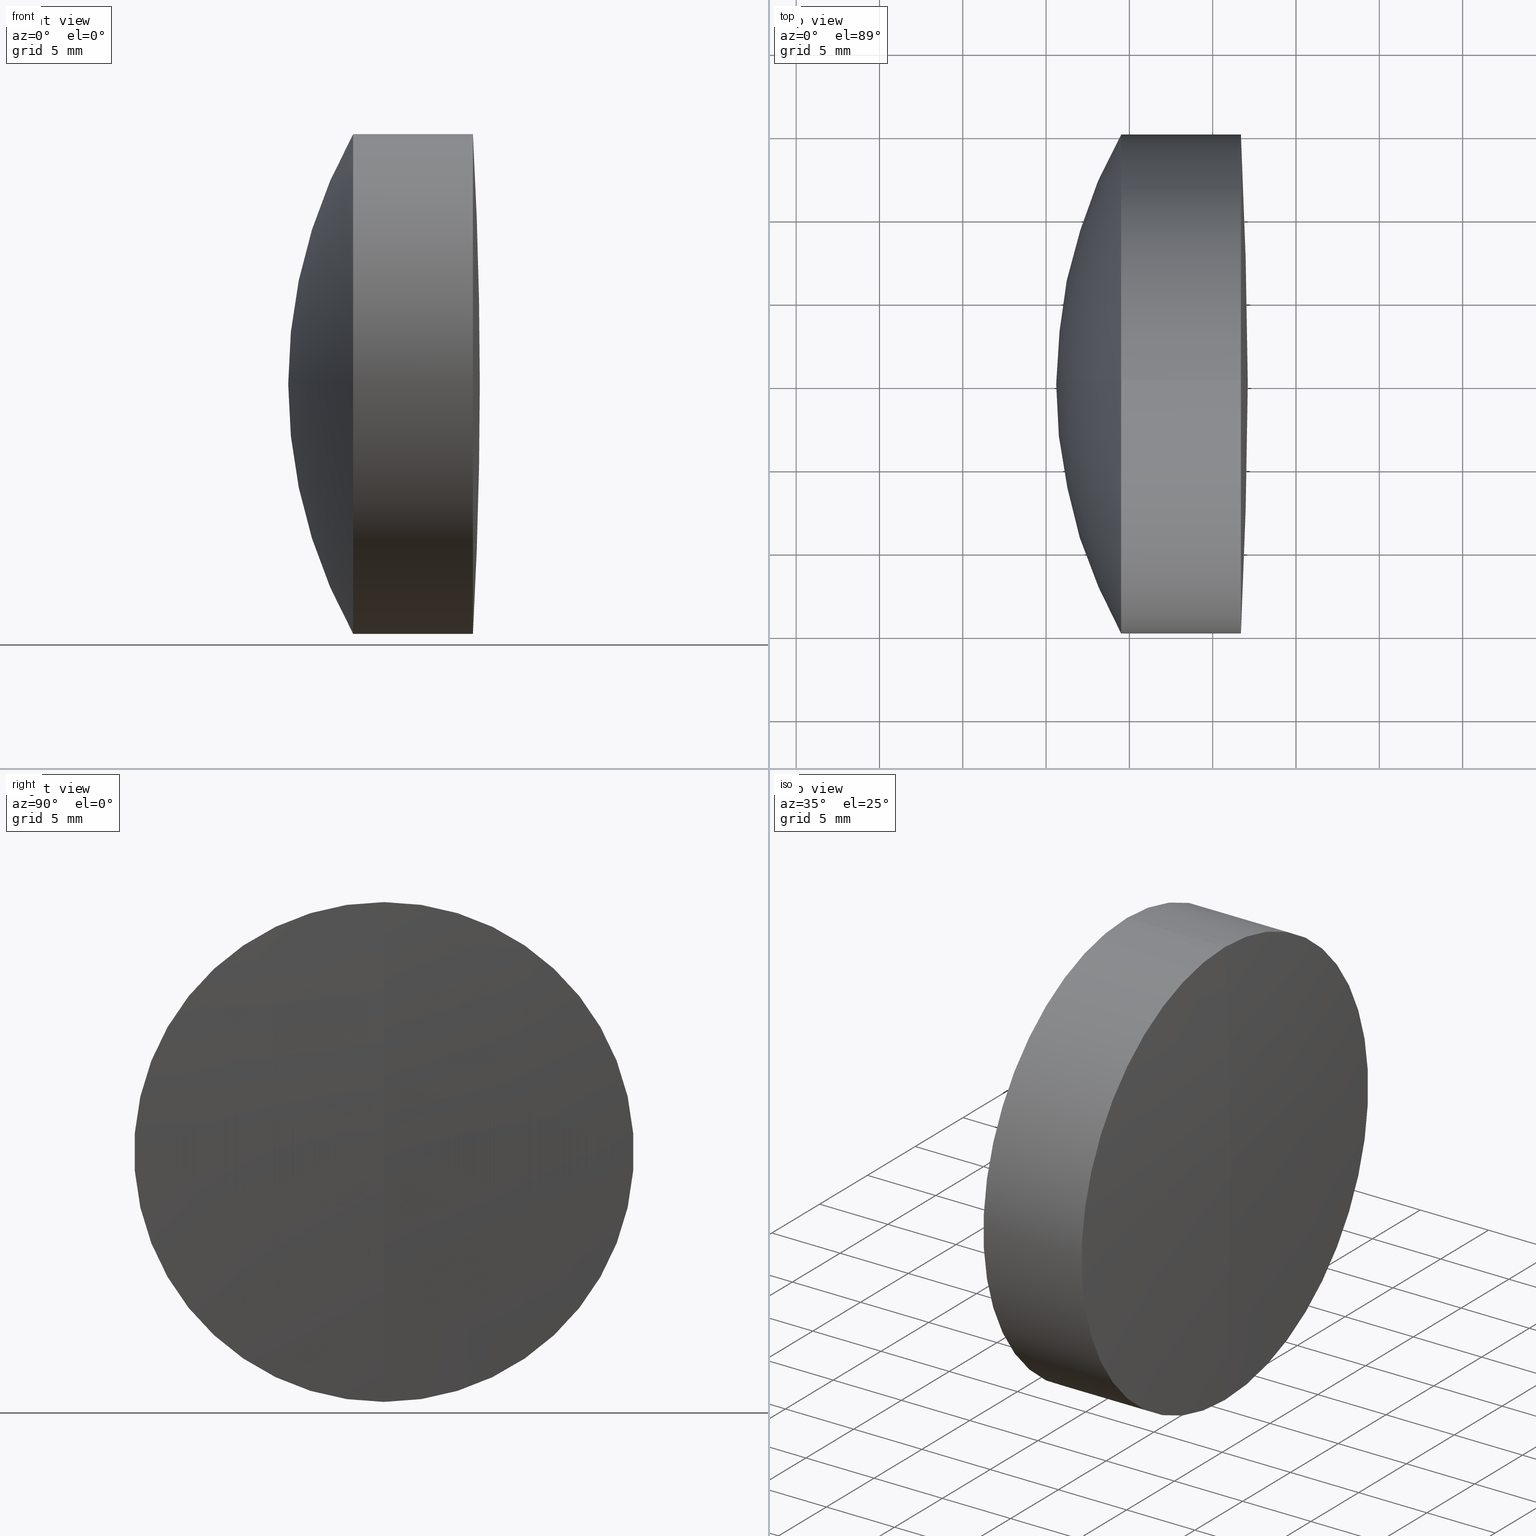
[diagram: canonical four-view strip — front | top / right | iso, engineering-drawing reading convention]
A machine part, canonical four-view strip (front | top / right | iso — engineering-drawing reading convention). The complete STEP part file that produces these views, byte-faithful:
ISO-10303-21;
HEADER;
FILE_DESCRIPTION (( 'STEP AP214' ),
    '1' );
FILE_NAME ('145130.STEP',
    '2019-06-04T02:02:45',
    ( 'user' ),
    ( '΢���й�' ),
    'SwSTEP 2.0',
    'SolidWorks 2016',
    '' );
FILE_SCHEMA (( 'AUTOMOTIVE_DESIGN' ));
ENDSEC;

DATA;
#1 = CARTESIAN_POINT ( 'NONE',  ( 74.20696522508252700, 0.0000000000000000000, 0.0000000000000000000 ) ) ;
#2 = PRODUCT_CONTEXT ( 'NONE', #32, 'mechanical' ) ;
#3 = EDGE_LOOP ( 'NONE', ( #291, #43, #317, #302 ) ) ;
#4 = CIRCLE ( 'NONE', #156, 27.90000000000008400 ) ;
#5 = CARTESIAN_POINT ( 'NONE',  ( 124.5233095260452400, 0.0000000000000000000, 0.0000000000000000000 ) ) ;
#6 = AXIS2_PLACEMENT_3D ( 'NONE', #292, #183, #340 ) ;
#7 = SURFACE_STYLE_USAGE ( .BOTH. , #173 ) ;
#8 = FILL_AREA_STYLE_COLOUR ( '', #190 ) ;
#9 = EDGE_CURVE ( 'NONE', #20, #148, #58, .T. ) ;
#10 = ADVANCED_FACE ( 'NONE', ( #21 ), #127, .T. ) ;
#11 = VERTEX_POINT ( 'NONE', #252 ) ;
#12 = ORIENTED_EDGE ( 'NONE', *, *, #108, .T. ) ;
#13 = PRESENTATION_LAYER_ASSIGNMENT (  '', '', ( #251 ) ) ;
#14 = CARTESIAN_POINT ( 'NONE',  ( 317.2069652250824000, 0.0000000000000000000, 9.183549615799121200E-038 ) ) ;
#15 = DIRECTION ( 'NONE',  ( 0.0000000000000000000, -1.000000000000000000, 0.0000000000000000000 ) ) ;
#16 = CARTESIAN_POINT ( 'NONE',  ( 366.4069652250823900, 0.0000000000000000000, -1.604193031049230700E-015 ) ) ;
#17 = DIRECTION ( 'NONE',  ( -1.000000000000000000, -0.0000000000000000000, -0.0000000000000000000 ) ) ;
#18 = DIRECTION ( 'NONE',  ( 0.0000000000000000000, 0.0000000000000000000, 1.000000000000000000 ) ) ;
#19 = ORIENTED_EDGE ( 'NONE', *, *, #30, .T. ) ;
#20 = VERTEX_POINT ( 'NONE', #268 ) ;
#21 = FACE_OUTER_BOUND ( 'NONE', #3, .T. ) ;
#22 =( NAMED_UNIT ( * ) PLANE_ANGLE_UNIT ( ) SI_UNIT ( $, .RADIAN. ) );
#23 = AXIS2_PLACEMENT_3D ( 'NONE', #56, #26, #146 ) ;
#24 = FILL_AREA_STYLE_COLOUR ( '', #341 ) ;
#25 = DIRECTION ( 'NONE',  ( 0.0000000000000000000, 0.0000000000000000000, 1.000000000000000000 ) ) ;
#26 = DIRECTION ( 'NONE',  ( 0.0000000000000000000, 0.0000000000000000000, 1.000000000000000000 ) ) ;
#27 = VECTOR ( 'NONE', #139, 1000.000000000000000 ) ;
#28 = CIRCLE ( 'NONE', #95, 15.00000000000000000 ) ;
#29 = CARTESIAN_POINT ( 'NONE',  ( -0.5519199926577972300, 0.0000000000000000000, 0.0000000000000000000 ) ) ;
#30 = EDGE_CURVE ( 'NONE', #123, #102, #193, .T. ) ;
#31 = SURFACE_STYLE_USAGE ( .BOTH. , #91 ) ;
#32 = APPLICATION_CONTEXT ( 'automotive_design' ) ;
#33 = EDGE_CURVE ( 'NONE', #59, #333, #89, .T. ) ;
#34 = EDGE_CURVE ( 'NONE', #231, #102, #80, .T. ) ;
#35 = PRODUCT_DEFINITION_CONTEXT ( 'detailed design', #304, 'design' ) ;
#36 = FACE_OUTER_BOUND ( 'NONE', #184, .T. ) ;
#37 = SURFACE_STYLE_FILL_AREA ( #334 ) ;
#38 = CARTESIAN_POINT ( 'NONE',  ( 340.7316331292209400, 1.836970198721026000E-015, -14.99999999999997200 ) ) ;
#39 = ADVANCED_FACE ( 'NONE', ( #332 ), #110, .T. ) ;
#40 = FACE_OUTER_BOUND ( 'NONE', #272, .T. ) ;
#41 = DIRECTION ( 'NONE',  ( -1.000000000000000000, -0.0000000000000000000, -0.0000000000000000000 ) ) ;
#42 = DIRECTION ( 'NONE',  ( 0.0000000000000000000, 0.0000000000000000000, -1.000000000000000000 ) ) ;
#43 = ORIENTED_EDGE ( 'NONE', *, *, #9, .T. ) ;
#44 = PRODUCT_DEFINITION ( 'δ֪', '', #60, #35 ) ;
#45 = DIRECTION ( 'NONE',  ( 0.0000000000000000000, 0.0000000000000000000, 1.000000000000000000 ) ) ;
#46 = UNCERTAINTY_MEASURE_WITH_UNIT (LENGTH_MEASURE( 1.000000000000000100E-005 ), #288, 'distance_accuracy_value', 'NONE');
#47 = CARTESIAN_POINT ( 'NONE',  ( 346.6944144773369800, 0.0000000000000000000, 0.0000000000000000000 ) ) ;
#48 = FILL_AREA_STYLE ('',( #24 ) ) ;
#49 = ORIENTED_EDGE ( 'NONE', *, *, #214, .T. ) ;
#50 = DIRECTION ( 'NONE',  ( 0.0000000000000000000, 0.0000000000000000000, -1.000000000000000000 ) ) ;
#51 = SURFACE_STYLE_FILL_AREA ( #337 ) ;
#52 = DIRECTION ( 'NONE',  ( -0.0000000000000000000, 1.000000000000000000, 1.224646799147353200E-016 ) ) ;
#53 = VERTEX_POINT ( 'NONE', #66 ) ;
#54 = DIRECTION ( 'NONE',  ( 0.0000000000000000000, 0.0000000000000000000, 1.000000000000000000 ) ) ;
#55 = AXIS2_PLACEMENT_3D ( 'NONE', #229, #154, #256 ) ;
#56 = CARTESIAN_POINT ( 'NONE',  ( 0.0000000000000000000, 0.0000000000000000000, 0.0000000000000000000 ) ) ;
#57 = UNCERTAINTY_MEASURE_WITH_UNIT (LENGTH_MEASURE( 1.000000000000000100E-005 ), #262, 'distance_accuracy_value', 'NONE');
#58 = CIRCLE ( 'NONE', #301, 14.99999999999997200 ) ;
#59 = VERTEX_POINT ( 'NONE', #201 ) ;
#60 = PRODUCT_DEFINITION_FORMATION_WITH_SPECIFIED_SOURCE ( '�κ�', '', #198, .NOT_KNOWN. ) ;
#61 = DIRECTION ( 'NONE',  ( 0.0000000000000000000, 0.0000000000000000000, 1.000000000000000000 ) ) ;
#62 = SPHERICAL_SURFACE ( 'NONE', #212, 27.90000000000008400 ) ;
#63 = DIRECTION ( 'NONE',  ( 0.0000000000000000000, 0.0000000000000000000, 1.000000000000000000 ) ) ;
#64 = ADVANCED_FACE ( 'NONE', ( #295 ), #247, .T. ) ;
#65 = SURFACE_SIDE_STYLE ('',( #51 ) ) ;
#66 = CARTESIAN_POINT ( 'NONE',  ( 347.1069652250823800, 0.0000000000000000000, 1.671030557436562800E-014 ) ) ;
#67 = AXIS2_PLACEMENT_3D ( 'NONE', #5, #315, #283 ) ;
#68 = ORIENTED_EDGE ( 'NONE', *, *, #34, .F. ) ;
#69 = MANIFOLD_SOLID_BREP ( '��ת3', #197 ) ;
#70 = DIRECTION ( 'NONE',  ( -1.000000000000000000, -0.0000000000000000000, -0.0000000000000000000 ) ) ;
#71 = DIRECTION ( 'NONE',  ( 0.0000000000000000000, 0.0000000000000000000, 1.000000000000000000 ) ) ;
#72 = EDGE_CURVE ( 'NONE', #11, #279, #115, .T. ) ;
#73 = DIRECTION ( 'NONE',  ( -0.0000000000000000000, 1.000000000000000000, 1.224646799147353200E-016 ) ) ;
#74 = ORIENTED_EDGE ( 'NONE', *, *, #107, .F. ) ;
#75 = DIRECTION ( 'NONE',  ( 0.0000000000000000000, 0.0000000000000000000, 1.000000000000000000 ) ) ;
#76 = AXIS2_PLACEMENT_3D ( 'NONE', #177, #128, #153 ) ;
#77 = VECTOR ( 'NONE', #151, 1000.000000000000000 ) ;
#78 = DIRECTION ( 'NONE',  ( -1.000000000000000000, -0.0000000000000000000, -0.0000000000000000000 ) ) ;
#79 = EDGE_LOOP ( 'NONE', ( #117, #249, #281, #129 ) ) ;
#80 = CIRCLE ( 'NONE', #307, 27.90000000000009100 ) ;
#81 = CIRCLE ( 'NONE', #182, 30.79999999999997900 ) ;
#82 = CARTESIAN_POINT ( 'NONE',  ( 366.4069652250823900, 0.0000000000000000000, -1.604193031049230700E-015 ) ) ;
#83 = PRODUCT_RELATED_PRODUCT_CATEGORY ( 'part', '', ( #198 ) ) ;
#84 = DIRECTION ( 'NONE',  ( 0.0000000000000000000, 0.0000000000000000000, 1.000000000000000000 ) ) ;
#85 = EDGE_LOOP ( 'NONE', ( #255, #12, #118 ) ) ;
#86 = APPLICATION_PROTOCOL_DEFINITION ( 'draft international standard', 'automotive_design', 1998, #304 ) ;
#87 =( GEOMETRIC_REPRESENTATION_CONTEXT ( 3 ) GLOBAL_UNCERTAINTY_ASSIGNED_CONTEXT ( ( #46 ) ) GLOBAL_UNIT_ASSIGNED_CONTEXT ( ( #288, #131, #257 ) ) REPRESENTATION_CONTEXT ( 'NONE', 'WORKASPACE' ) );
#88 = CARTESIAN_POINT ( 'NONE',  ( 74.20696522508252700, 0.0000000000000000000, 0.0000000000000000000 ) ) ;
#89 = CIRCLE ( 'NONE', #314, 27.90000000000008400 ) ;
#90 = ORIENTED_EDGE ( 'NONE', *, *, #188, .F. ) ;
#91 = SURFACE_SIDE_STYLE ('',( #174 ) ) ;
#92 = EDGE_CURVE ( 'NONE', #122, #333, #28, .T. ) ;
#93 = AXIS2_PLACEMENT_3D ( 'NONE', #119, #277, #84 ) ;
#94 = SPHERICAL_SURFACE ( 'NONE', #189, 30.79999999999997900 ) ;
#95 = AXIS2_PLACEMENT_3D ( 'NONE', #99, #285, #63 ) ;
#96 = ORIENTED_EDGE ( 'NONE', *, *, #152, .T. ) ;
#97 = CARTESIAN_POINT ( 'NONE',  ( 74.20696522508252700, 0.0000000000000000000, 0.0000000000000000000 ) ) ;
#98 = CIRCLE ( 'NONE', #269, 14.99999999999997200 ) ;
#99 = CARTESIAN_POINT ( 'NONE',  ( 340.7316331292209400, 0.0000000000000000000, 0.0000000000000000000 ) ) ;
#100 = ADVANCED_FACE ( 'NONE', ( #105 ), #161, .F. ) ;
#101 = EDGE_CURVE ( 'NONE', #231, #123, #241, .T. ) ;
#102 = VERTEX_POINT ( 'NONE', #38 ) ;
#103 = DIRECTION ( 'NONE',  ( -1.000000000000000000, -0.0000000000000000000, -0.0000000000000000000 ) ) ;
#104 =( NAMED_UNIT ( * ) SI_UNIT ( $, .STERADIAN. ) SOLID_ANGLE_UNIT ( ) );
#105 = FACE_OUTER_BOUND ( 'NONE', #312, .T. ) ;
#106 = MANIFOLD_SOLID_BREP ( '��ת1', #344 ) ;
#107 = EDGE_CURVE ( 'NONE', #333, #122, #213, .T. ) ;
#108 = EDGE_CURVE ( 'NONE', #11, #331, #261, .T. ) ;
#109 = SPHERICAL_SURFACE ( 'NONE', #114, 272.8999999999998600 ) ;
#110 = SPHERICAL_SURFACE ( 'NONE', #259, 30.79999999999997900 ) ;
#111 = DIRECTION ( 'NONE',  ( -1.000000000000000000, -0.0000000000000000000, -0.0000000000000000000 ) ) ;
#112 = ORIENTED_EDGE ( 'NONE', *, *, #116, .T. ) ;
#113 =( NAMED_UNIT ( * ) SI_UNIT ( $, .STERADIAN. ) SOLID_ANGLE_UNIT ( ) );
#114 = AXIS2_PLACEMENT_3D ( 'NONE', #88, #248, #217 ) ;
#115 = CIRCLE ( 'NONE', #280, 14.99999999999999800 ) ;
#116 = EDGE_CURVE ( 'NONE', #53, #148, #168, .T. ) ;
#117 = ORIENTED_EDGE ( 'NONE', *, *, #92, .T. ) ;
#118 = ORIENTED_EDGE ( 'NONE', *, *, #335, .F. ) ;
#119 = CARTESIAN_POINT ( 'NONE',  ( 339.5064076100440500, 0.0000000000000000000, 0.0000000000000000000 ) ) ;
#120 = PRESENTATION_STYLE_ASSIGNMENT (( #31 ) ) ;
#121 = PRESENTATION_STYLE_ASSIGNMENT (( #313 ) ) ;
#122 = VERTEX_POINT ( 'NONE', #316 ) ;
#123 = VERTEX_POINT ( 'NONE', #265 ) ;
#124 = CARTESIAN_POINT ( 'NONE',  ( -0.5519199926577972300, 0.0000000000000000000, 14.99999999999997200 ) ) ;
#125 = CIRCLE ( 'NONE', #93, 14.99999999999999800 ) ;
#126 = DIRECTION ( 'NONE',  ( -0.0000000000000000000, 1.000000000000000000, 1.224646799147353200E-016 ) ) ;
#127 = CYLINDRICAL_SURFACE ( 'NONE', #342, 14.99999999999997200 ) ;
#128 = DIRECTION ( 'NONE',  ( 0.0000000000000000000, -1.000000000000000000, 0.0000000000000000000 ) ) ;
#129 = ORIENTED_EDGE ( 'NONE', *, *, #214, .F. ) ;
#130 = CARTESIAN_POINT ( 'NONE',  ( 346.6944144773369800, 0.0000000000000000000, 14.99999999999997200 ) ) ;
#131 =( NAMED_UNIT ( * ) PLANE_ANGLE_UNIT ( ) SI_UNIT ( $, .RADIAN. ) );
#132 = ADVANCED_FACE ( 'NONE', ( #40 ), #94, .T. ) ;
#133 = DIRECTION ( 'NONE',  ( 0.0000000000000000000, -1.224646799147353200E-016, 1.000000000000000000 ) ) ;
#134 = AXIS2_PLACEMENT_3D ( 'NONE', #245, #52, #216 ) ;
#135 = CARTESIAN_POINT ( 'NONE',  ( 340.7316331292209400, 0.0000000000000000000, 0.0000000000000000000 ) ) ;
#136 = ORIENTED_EDGE ( 'NONE', *, *, #101, .F. ) ;
#137 = EDGE_CURVE ( 'NONE', #20, #102, #147, .T. ) ;
#138 = CARTESIAN_POINT ( 'NONE',  ( 317.2069652250824000, 0.0000000000000000000, 9.183549615799121200E-038 ) ) ;
#139 = DIRECTION ( 'NONE',  ( -1.000000000000000000, -0.0000000000000000000, -0.0000000000000000000 ) ) ;
#140 = EDGE_CURVE ( 'NONE', #59, #122, #4, .T. ) ;
#141 = LINE ( 'NONE', #124, #172 ) ;
#142 = EDGE_LOOP ( 'NONE', ( #209, #250, #225 ) ) ;
#143 = CARTESIAN_POINT ( 'NONE',  ( 340.7316331292209400, 1.836970198721029600E-015, -15.00000000000000000 ) ) ;
#144 =( GEOMETRIC_REPRESENTATION_CONTEXT ( 3 ) GLOBAL_UNCERTAINTY_ASSIGNED_CONTEXT ( ( #57 ) ) GLOBAL_UNIT_ASSIGNED_CONTEXT ( ( #262, #294, #104 ) ) REPRESENTATION_CONTEXT ( 'NONE', 'WORKASPACE' ) );
#145 = DIRECTION ( 'NONE',  ( 0.0000000000000000000, 1.000000000000000000, 0.0000000000000000000 ) ) ;
#146 = DIRECTION ( 'NONE',  ( 1.000000000000000000, 0.0000000000000000000, 0.0000000000000000000 ) ) ;
#147 = LINE ( 'NONE', #264, #77 ) ;
#148 = VERTEX_POINT ( 'NONE', #130 ) ;
#149 = AXIS2_PLACEMENT_3D ( 'NONE', #29, #194, #54 ) ;
#150 =( LENGTH_UNIT ( ) NAMED_UNIT ( * ) SI_UNIT ( .MILLI., .METRE. ) );
#151 = DIRECTION ( 'NONE',  ( -1.000000000000000000, -0.0000000000000000000, -0.0000000000000000000 ) ) ;
#152 = EDGE_CURVE ( 'NONE', #102, #123, #219, .T. ) ;
#153 = DIRECTION ( 'NONE',  ( 0.0000000000000000000, 0.0000000000000000000, -1.000000000000000000 ) ) ;
#154 = DIRECTION ( 'NONE',  ( 0.0000000000000000000, 1.000000000000000000, 0.0000000000000000000 ) ) ;
#155 = CYLINDRICAL_SURFACE ( 'NONE', #67, 15.00000000000000000 ) ;
#156 = AXIS2_PLACEMENT_3D ( 'NONE', #199, #202, #181 ) ;
#157 = FILL_AREA_STYLE_COLOUR ( '', #328 ) ;
#158 = EDGE_LOOP ( 'NONE', ( #68, #163, #19 ) ) ;
#159 = ORIENTED_EDGE ( 'NONE', *, *, #72, .T. ) ;
#160 = CARTESIAN_POINT ( 'NONE',  ( 124.5233095260452400, 1.836970198721029600E-015, -15.00000000000000000 ) ) ;
#161 = SPHERICAL_SURFACE ( 'NONE', #55, 27.90000000000009100 ) ;
#162 = SHAPE_DEFINITION_REPRESENTATION ( #282, #289 ) ;
#163 = ORIENTED_EDGE ( 'NONE', *, *, #101, .T. ) ;
#164 = CARTESIAN_POINT ( 'NONE',  ( 366.4069652250823900, 0.0000000000000000000, -1.604193031049230700E-015 ) ) ;
#165 = DIRECTION ( 'NONE',  ( -1.000000000000000000, -0.0000000000000000000, -0.0000000000000000000 ) ) ;
#166 = ORIENTED_EDGE ( 'NONE', *, *, #107, .T. ) ;
#167 = AXIS2_PLACEMENT_3D ( 'NONE', #278, #145, #25 ) ;
#168 = CIRCLE ( 'NONE', #325, 272.8999999999998600 ) ;
#169 = ORIENTED_EDGE ( 'NONE', *, *, #33, .T. ) ;
#170 = CARTESIAN_POINT ( 'NONE',  ( 339.5064076100440500, 0.0000000000000000000, 15.00000000000001800 ) ) ;
#171 = DIRECTION ( 'NONE',  ( 0.0000000000000000000, 1.000000000000000000, 0.0000000000000000000 ) ) ;
#172 = VECTOR ( 'NONE', #224, 1000.000000000000000 ) ;
#173 = SURFACE_SIDE_STYLE ('',( #37 ) ) ;
#174 = SURFACE_STYLE_FILL_AREA ( #48 ) ;
#175 = CIRCLE ( 'NONE', #134, 272.8999999999998600 ) ;
#176 = AXIS2_PLACEMENT_3D ( 'NONE', #135, #41, #45 ) ;
#177 = CARTESIAN_POINT ( 'NONE',  ( 317.2069652250824000, 0.0000000000000000000, 9.183549615799121200E-038 ) ) ;
#178 = ORIENTED_EDGE ( 'NONE', *, *, #227, .F. ) ;
#179 = DIRECTION ( 'NONE',  ( -1.000000000000000000, -0.0000000000000000000, -0.0000000000000000000 ) ) ;
#180 = ADVANCED_FACE ( 'NONE', ( #338 ), #155, .T. ) ;
#181 = DIRECTION ( 'NONE',  ( 0.0000000000000000000, 0.0000000000000000000, -1.000000000000000000 ) ) ;
#182 = AXIS2_PLACEMENT_3D ( 'NONE', #82, #242, #50 ) ;
#183 = DIRECTION ( 'NONE',  ( -1.000000000000000000, -0.0000000000000000000, -0.0000000000000000000 ) ) ;
#184 = EDGE_LOOP ( 'NONE', ( #223, #263, #206, #90 ) ) ;
#185 = EDGE_LOOP ( 'NONE', ( #238, #347, #74 ) ) ;
#186 = SPHERICAL_SURFACE ( 'NONE', #167, 27.90000000000008400 ) ;
#187 = DIRECTION ( 'NONE',  ( 0.0000000000000000000, 0.0000000000000000000, 1.000000000000000000 ) ) ;
#188 = EDGE_CURVE ( 'NONE', #148, #123, #141, .T. ) ;
#189 = AXIS2_PLACEMENT_3D ( 'NONE', #16, #236, #71 ) ;
#190 = COLOUR_RGB ( '',1.000000000000000000, 1.000000000000000000, 1.000000000000000000 ) ;
#191 = ORIENTED_EDGE ( 'NONE', *, *, #335, .T. ) ;
#192 = DIRECTION ( 'NONE',  ( 0.0000000000000000000, 1.000000000000000000, 0.0000000000000000000 ) ) ;
#193 = CIRCLE ( 'NONE', #343, 14.99999999999997300 ) ;
#194 = DIRECTION ( 'NONE',  ( -1.000000000000000000, -0.0000000000000000000, -0.0000000000000000000 ) ) ;
#195 = ORIENTED_EDGE ( 'NONE', *, *, #34, .T. ) ;
#196 = AXIS2_PLACEMENT_3D ( 'NONE', #1, #171, #244 ) ;
#197 = CLOSED_SHELL ( 'NONE', ( #228, #230, #100, #200, #10, #286 ) ) ;
#198 = PRODUCT ( '145130', '145130', '', ( #2 ) ) ;
#199 = CARTESIAN_POINT ( 'NONE',  ( 317.2069652250824000, 0.0000000000000000000, 9.183549615799121200E-038 ) ) ;
#200 = ADVANCED_FACE ( 'NONE', ( #235 ), #287, .F. ) ;
#201 = CARTESIAN_POINT ( 'NONE',  ( 345.1069652250824900, 0.0000000000000000000, 1.708382284810562900E-015 ) ) ;
#202 = DIRECTION ( 'NONE',  ( 0.0000000000000000000, -1.000000000000000000, 0.0000000000000000000 ) ) ;
#203 = ORIENTED_EDGE ( 'NONE', *, *, #92, .F. ) ;
#204 = CARTESIAN_POINT ( 'NONE',  ( 366.4069652250823900, 0.0000000000000000000, -1.604193031049230700E-015 ) ) ;
#205 = FACE_OUTER_BOUND ( 'NONE', #185, .T. ) ;
#206 = ORIENTED_EDGE ( 'NONE', *, *, #30, .F. ) ;
#207 = CARTESIAN_POINT ( 'NONE',  ( 340.7316331292209400, 0.0000000000000000000, 0.0000000000000000000 ) ) ;
#208 = AXIS2_PLACEMENT_3D ( 'NONE', #204, #73, #237 ) ;
#209 = ORIENTED_EDGE ( 'NONE', *, *, #116, .F. ) ;
#210 = EDGE_CURVE ( 'NONE', #148, #20, #98, .T. ) ;
#211 = APPLICATION_PROTOCOL_DEFINITION ( 'draft international standard', 'automotive_design', 1998, #32 ) ;
#212 = AXIS2_PLACEMENT_3D ( 'NONE', #215, #192, #326 ) ;
#213 = CIRCLE ( 'NONE', #176, 15.00000000000000000 ) ;
#214 = EDGE_CURVE ( 'NONE', #122, #279, #271, .T. ) ;
#215 = CARTESIAN_POINT ( 'NONE',  ( 317.2069652250824000, 0.0000000000000000000, 9.183549615799121200E-038 ) ) ;
#216 = DIRECTION ( 'NONE',  ( 0.0000000000000000000, -1.224646799147353500E-016, 1.000000000000000000 ) ) ;
#217 = DIRECTION ( 'NONE',  ( 0.0000000000000000000, 0.0000000000000000000, 1.000000000000000000 ) ) ;
#218 =( NAMED_UNIT ( * ) PLANE_ANGLE_UNIT ( ) SI_UNIT ( $, .RADIAN. ) );
#219 = CIRCLE ( 'NONE', #6, 14.99999999999997300 ) ;
#220 = UNCERTAINTY_MEASURE_WITH_UNIT (LENGTH_MEASURE( 1.000000000000000100E-005 ), #150, 'distance_accuracy_value', 'NONE');
#221 = AXIS2_PLACEMENT_3D ( 'NONE', #14, #297, #18 ) ;
#222 = EDGE_LOOP ( 'NONE', ( #267, #169, #203 ) ) ;
#223 = ORIENTED_EDGE ( 'NONE', *, *, #210, .T. ) ;
#224 = DIRECTION ( 'NONE',  ( -1.000000000000000000, -0.0000000000000000000, -0.0000000000000000000 ) ) ;
#225 = ORIENTED_EDGE ( 'NONE', *, *, #210, .F. ) ;
#226 = MECHANICAL_DESIGN_GEOMETRIC_PRESENTATION_REPRESENTATION (  '', ( #346 ), #144 ) ;
#227 = EDGE_CURVE ( 'NONE', #333, #11, #246, .T. ) ;
#228 = ADVANCED_FACE ( 'NONE', ( #319 ), #109, .T. ) ;
#229 = CARTESIAN_POINT ( 'NONE',  ( 317.2069652250824000, 0.0000000000000000000, 9.183549615799121200E-038 ) ) ;
#230 = ADVANCED_FACE ( 'NONE', ( #36 ), #253, .T. ) ;
#231 = VERTEX_POINT ( 'NONE', #329 ) ;
#232 = CARTESIAN_POINT ( 'NONE',  ( 124.5233095260452400, 0.0000000000000000000, 0.0000000000000000000 ) ) ;
#233 = EDGE_CURVE ( 'NONE', #53, #20, #175, .T. ) ;
#234 =( GEOMETRIC_REPRESENTATION_CONTEXT ( 3 ) GLOBAL_UNCERTAINTY_ASSIGNED_CONTEXT ( ( #345 ) ) GLOBAL_UNIT_ASSIGNED_CONTEXT ( ( #275, #22, #113 ) ) REPRESENTATION_CONTEXT ( 'NONE', 'WORKASPACE' ) );
#235 = FACE_OUTER_BOUND ( 'NONE', #158, .T. ) ;
#236 = DIRECTION ( 'NONE',  ( 0.0000000000000000000, 1.000000000000000000, 0.0000000000000000000 ) ) ;
#237 = DIRECTION ( 'NONE',  ( 0.0000000000000000000, -1.224646799147353200E-016, 1.000000000000000000 ) ) ;
#238 = ORIENTED_EDGE ( 'NONE', *, *, #33, .F. ) ;
#239 = DIRECTION ( 'NONE',  ( 0.0000000000000000000, 0.0000000000000000000, 1.000000000000000000 ) ) ;
#240 = AXIS2_PLACEMENT_3D ( 'NONE', #232, #103, #75 ) ;
#241 = CIRCLE ( 'NONE', #76, 27.90000000000009100 ) ;
#242 = DIRECTION ( 'NONE',  ( 0.0000000000000000000, -1.000000000000000000, 0.0000000000000000000 ) ) ;
#243 = EDGE_LOOP ( 'NONE', ( #178, #166, #49, #296 ) ) ;
#244 = DIRECTION ( 'NONE',  ( 0.0000000000000000000, 0.0000000000000000000, 1.000000000000000000 ) ) ;
#245 = CARTESIAN_POINT ( 'NONE',  ( 74.20696522508252700, 0.0000000000000000000, 0.0000000000000000000 ) ) ;
#246 = LINE ( 'NONE', #160, #27 ) ;
#247 = CYLINDRICAL_SURFACE ( 'NONE', #240, 15.00000000000000000 ) ;
#248 = DIRECTION ( 'NONE',  ( 0.0000000000000000000, 1.000000000000000000, 0.0000000000000000000 ) ) ;
#249 = ORIENTED_EDGE ( 'NONE', *, *, #227, .T. ) ;
#250 = ORIENTED_EDGE ( 'NONE', *, *, #233, .T. ) ;
#251 = STYLED_ITEM ( 'NONE', ( #121 ), #69 ) ;
#252 = CARTESIAN_POINT ( 'NONE',  ( 339.5064076100440500, 1.836970198721032300E-015, -15.00000000000002000 ) ) ;
#253 = CYLINDRICAL_SURFACE ( 'NONE', #149, 14.99999999999997200 ) ;
#254 = PRESENTATION_STYLE_ASSIGNMENT (( #7 ) ) ;
#255 = ORIENTED_EDGE ( 'NONE', *, *, #284, .T. ) ;
#256 = DIRECTION ( 'NONE',  ( 0.0000000000000000000, 0.0000000000000000000, 1.000000000000000000 ) ) ;
#257 =( NAMED_UNIT ( * ) SI_UNIT ( $, .STERADIAN. ) SOLID_ANGLE_UNIT ( ) );
#258 = ADVANCED_FACE ( 'NONE', ( #327 ), #186, .T. ) ;
#259 = AXIS2_PLACEMENT_3D ( 'NONE', #164, #298, #260 ) ;
#260 = DIRECTION ( 'NONE',  ( 0.0000000000000000000, 0.0000000000000000000, 1.000000000000000000 ) ) ;
#261 = CIRCLE ( 'NONE', #208, 30.79999999999997900 ) ;
#262 =( LENGTH_UNIT ( ) NAMED_UNIT ( * ) SI_UNIT ( .MILLI., .METRE. ) );
#263 = ORIENTED_EDGE ( 'NONE', *, *, #137, .T. ) ;
#264 = CARTESIAN_POINT ( 'NONE',  ( -0.5519199926577972300, 1.836970198721026400E-015, -14.99999999999997200 ) ) ;
#265 = CARTESIAN_POINT ( 'NONE',  ( 340.7316331292209400, 0.0000000000000000000, 14.99999999999997200 ) ) ;
#266 = FACE_OUTER_BOUND ( 'NONE', #339, .T. ) ;
#267 = ORIENTED_EDGE ( 'NONE', *, *, #140, .F. ) ;
#268 = CARTESIAN_POINT ( 'NONE',  ( 346.6944144773369800, 1.836970198721026400E-015, -14.99999999999997200 ) ) ;
#269 = AXIS2_PLACEMENT_3D ( 'NONE', #299, #111, #270 ) ;
#270 = DIRECTION ( 'NONE',  ( 0.0000000000000000000, 0.0000000000000000000, 1.000000000000000000 ) ) ;
#271 = LINE ( 'NONE', #321, #309 ) ;
#272 = EDGE_LOOP ( 'NONE', ( #303, #159, #191 ) ) ;
#273 = MECHANICAL_DESIGN_GEOMETRIC_PRESENTATION_REPRESENTATION (  '', ( #251 ), #87 ) ;
#274 = STYLED_ITEM ( 'NONE', ( #120 ), #289 ) ;
#275 =( LENGTH_UNIT ( ) NAMED_UNIT ( * ) SI_UNIT ( .MILLI., .METRE. ) );
#276 = SPHERICAL_SURFACE ( 'NONE', #196, 272.8999999999998600 ) ;
#277 = DIRECTION ( 'NONE',  ( -1.000000000000000000, -0.0000000000000000000, -0.0000000000000000000 ) ) ;
#278 = CARTESIAN_POINT ( 'NONE',  ( 317.2069652250824000, 0.0000000000000000000, 9.183549615799121200E-038 ) ) ;
#279 = VERTEX_POINT ( 'NONE', #170 ) ;
#280 = AXIS2_PLACEMENT_3D ( 'NONE', #336, #179, #310 ) ;
#281 = ORIENTED_EDGE ( 'NONE', *, *, #284, .F. ) ;
#282 = PRODUCT_DEFINITION_SHAPE ( 'NONE', 'NONE',  #44 ) ;
#283 = DIRECTION ( 'NONE',  ( 0.0000000000000000000, 0.0000000000000000000, 1.000000000000000000 ) ) ;
#284 = EDGE_CURVE ( 'NONE', #279, #11, #125, .T. ) ;
#285 = DIRECTION ( 'NONE',  ( -1.000000000000000000, -0.0000000000000000000, -0.0000000000000000000 ) ) ;
#286 = ADVANCED_FACE ( 'NONE', ( #266 ), #276, .T. ) ;
#287 = SPHERICAL_SURFACE ( 'NONE', #221, 27.90000000000009100 ) ;
#288 =( LENGTH_UNIT ( ) NAMED_UNIT ( * ) SI_UNIT ( .MILLI., .METRE. ) );
#289 = ADVANCED_BREP_SHAPE_REPRESENTATION ( '145130', ( #106, #69, #23 ), #234 ) ;
#290 = DIRECTION ( 'NONE',  ( -0.0000000000000000000, 1.000000000000000000, 1.224646799147353200E-016 ) ) ;
#291 = ORIENTED_EDGE ( 'NONE', *, *, #137, .F. ) ;
#292 = CARTESIAN_POINT ( 'NONE',  ( 340.7316331292209400, 0.0000000000000000000, 0.0000000000000000000 ) ) ;
#293 = PRESENTATION_LAYER_ASSIGNMENT (  '', '', ( #274 ) ) ;
#294 =( NAMED_UNIT ( * ) PLANE_ANGLE_UNIT ( ) SI_UNIT ( $, .RADIAN. ) );
#295 = FACE_OUTER_BOUND ( 'NONE', #243, .T. ) ;
#296 = ORIENTED_EDGE ( 'NONE', *, *, #72, .F. ) ;
#297 = DIRECTION ( 'NONE',  ( 0.0000000000000000000, 1.000000000000000000, 0.0000000000000000000 ) ) ;
#298 = DIRECTION ( 'NONE',  ( 0.0000000000000000000, 1.000000000000000000, 0.0000000000000000000 ) ) ;
#299 = CARTESIAN_POINT ( 'NONE',  ( 346.6944144773369800, 0.0000000000000000000, 0.0000000000000000000 ) ) ;
#300 =( NAMED_UNIT ( * ) SI_UNIT ( $, .STERADIAN. ) SOLID_ANGLE_UNIT ( ) );
#301 = AXIS2_PLACEMENT_3D ( 'NONE', #47, #70, #61 ) ;
#302 = ORIENTED_EDGE ( 'NONE', *, *, #152, .F. ) ;
#303 = ORIENTED_EDGE ( 'NONE', *, *, #108, .F. ) ;
#304 = APPLICATION_CONTEXT ( 'automotive_design' ) ;
#305 = ORIENTED_EDGE ( 'NONE', *, *, #9, .F. ) ;
#306 = MECHANICAL_DESIGN_GEOMETRIC_PRESENTATION_REPRESENTATION (  '', ( #274 ), #322 ) ;
#307 = AXIS2_PLACEMENT_3D ( 'NONE', #138, #290, #133 ) ;
#308 = DIRECTION ( 'NONE',  ( 0.0000000000000000000, -1.224646799147353200E-016, 1.000000000000000000 ) ) ;
#309 = VECTOR ( 'NONE', #165, 1000.000000000000000 ) ;
#310 = DIRECTION ( 'NONE',  ( 0.0000000000000000000, 0.0000000000000000000, 1.000000000000000000 ) ) ;
#311 = ADVANCED_FACE ( 'NONE', ( #205 ), #62, .T. ) ;
#312 = EDGE_LOOP ( 'NONE', ( #136, #195, #96 ) ) ;
#313 = SURFACE_STYLE_USAGE ( .BOTH. , #65 ) ;
#314 = AXIS2_PLACEMENT_3D ( 'NONE', #318, #126, #308 ) ;
#315 = DIRECTION ( 'NONE',  ( -1.000000000000000000, -0.0000000000000000000, -0.0000000000000000000 ) ) ;
#316 = CARTESIAN_POINT ( 'NONE',  ( 340.7316331292209400, 0.0000000000000000000, 15.00000000000000000 ) ) ;
#317 = ORIENTED_EDGE ( 'NONE', *, *, #188, .T. ) ;
#318 = CARTESIAN_POINT ( 'NONE',  ( 317.2069652250824000, 0.0000000000000000000, 9.183549615799121200E-038 ) ) ;
#319 = FACE_OUTER_BOUND ( 'NONE', #142, .T. ) ;
#320 = CARTESIAN_POINT ( 'NONE',  ( -0.5519199926577972300, 0.0000000000000000000, 0.0000000000000000000 ) ) ;
#321 = CARTESIAN_POINT ( 'NONE',  ( 124.5233095260452400, 0.0000000000000000000, 15.00000000000000000 ) ) ;
#322 =( GEOMETRIC_REPRESENTATION_CONTEXT ( 3 ) GLOBAL_UNCERTAINTY_ASSIGNED_CONTEXT ( ( #220 ) ) GLOBAL_UNIT_ASSIGNED_CONTEXT ( ( #150, #218, #300 ) ) REPRESENTATION_CONTEXT ( 'NONE', 'WORKASPACE' ) );
#323 = ORIENTED_EDGE ( 'NONE', *, *, #233, .F. ) ;
#324 = CARTESIAN_POINT ( 'NONE',  ( 335.6069652250823800, 0.0000000000000000000, 2.817630396376919300E-016 ) ) ;
#325 = AXIS2_PLACEMENT_3D ( 'NONE', #97, #15, #42 ) ;
#326 = DIRECTION ( 'NONE',  ( 0.0000000000000000000, 0.0000000000000000000, 1.000000000000000000 ) ) ;
#327 = FACE_OUTER_BOUND ( 'NONE', #222, .T. ) ;
#328 = COLOUR_RGB ( '',1.000000000000000000, 1.000000000000000000, 1.000000000000000000 ) ;
#329 = CARTESIAN_POINT ( 'NONE',  ( 345.1069652250824900, 0.0000000000000000000, 1.708382284810563300E-015 ) ) ;
#330 = PRESENTATION_LAYER_ASSIGNMENT (  '', '', ( #346 ) ) ;
#331 = VERTEX_POINT ( 'NONE', #324 ) ;
#332 = FACE_OUTER_BOUND ( 'NONE', #85, .T. ) ;
#333 = VERTEX_POINT ( 'NONE', #143 ) ;
#334 = FILL_AREA_STYLE ('',( #8 ) ) ;
#335 = EDGE_CURVE ( 'NONE', #279, #331, #81, .T. ) ;
#336 = CARTESIAN_POINT ( 'NONE',  ( 339.5064076100440500, 0.0000000000000000000, 0.0000000000000000000 ) ) ;
#337 = FILL_AREA_STYLE ('',( #157 ) ) ;
#338 = FACE_OUTER_BOUND ( 'NONE', #79, .T. ) ;
#339 = EDGE_LOOP ( 'NONE', ( #323, #112, #305 ) ) ;
#340 = DIRECTION ( 'NONE',  ( 0.0000000000000000000, 0.0000000000000000000, 1.000000000000000000 ) ) ;
#341 = COLOUR_RGB ( '',1.000000000000000000, 1.000000000000000000, 1.000000000000000000 ) ;
#342 = AXIS2_PLACEMENT_3D ( 'NONE', #320, #78, #239 ) ;
#343 = AXIS2_PLACEMENT_3D ( 'NONE', #207, #17, #187 ) ;
#344 = CLOSED_SHELL ( 'NONE', ( #258, #180, #39, #132, #64, #311 ) ) ;
#345 = UNCERTAINTY_MEASURE_WITH_UNIT (LENGTH_MEASURE( 1.000000000000000100E-005 ), #275, 'distance_accuracy_value', 'NONE');
#346 = STYLED_ITEM ( 'NONE', ( #254 ), #106 ) ;
#347 = ORIENTED_EDGE ( 'NONE', *, *, #140, .T. ) ;
ENDSEC;
END-ISO-10303-21;
